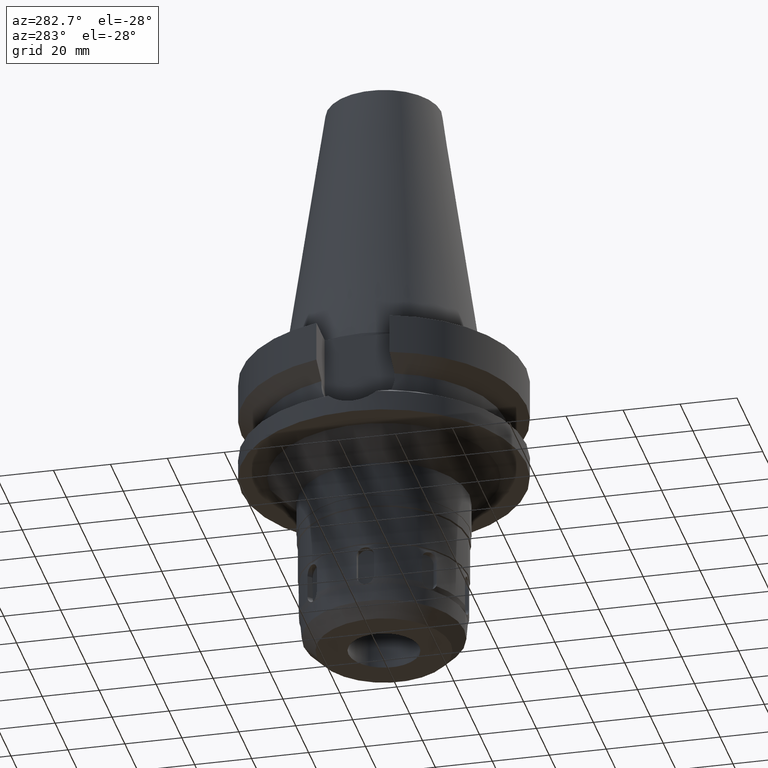
[diagram: clean part render]
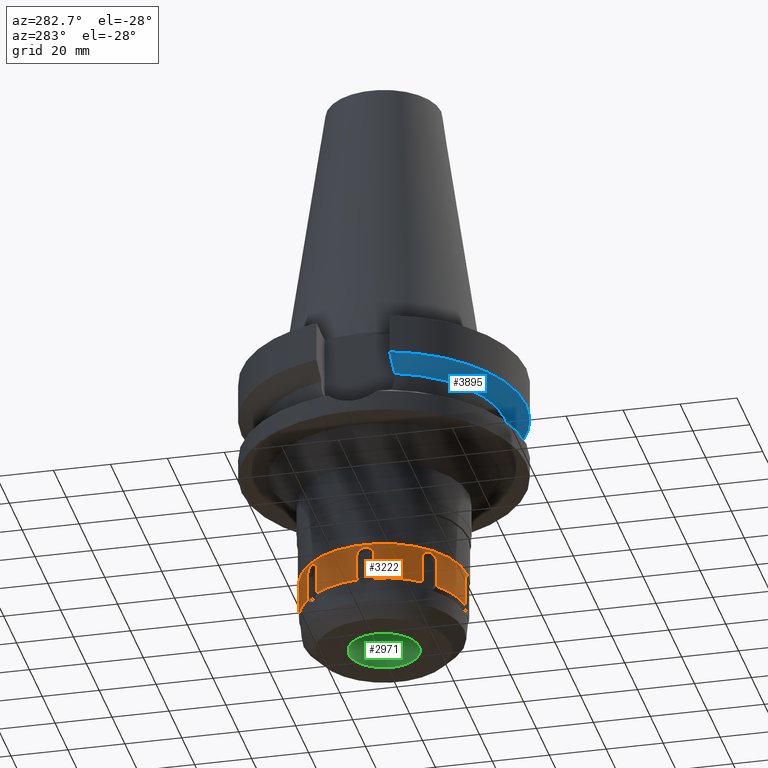
[diagram: same view with three faces highlighted in distinct colors, each labeled with its STEP entity id]
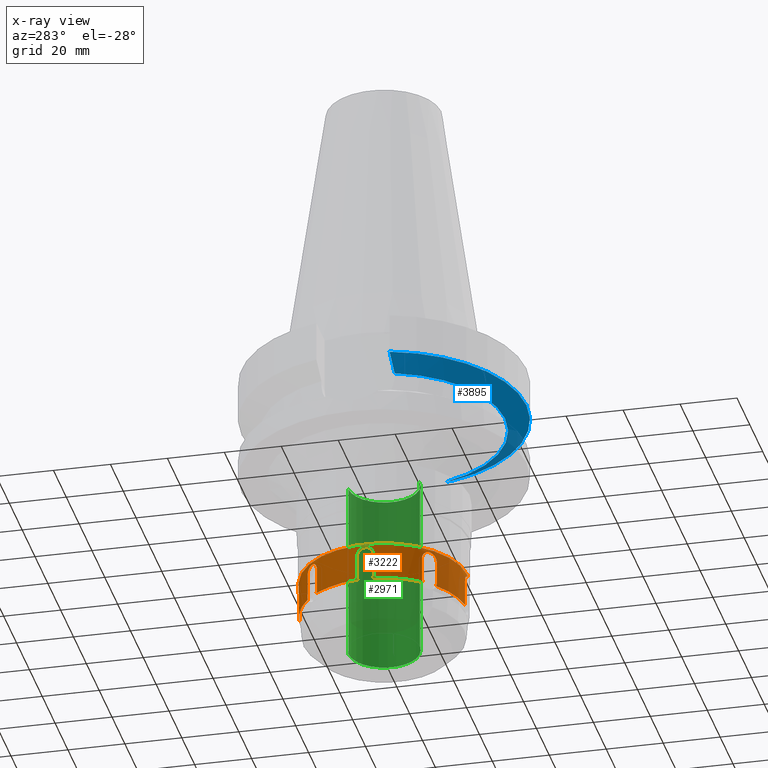
[diagram: x-ray of the same camera — body ghosted, the three highlighted faces saturated]
A machine part, auxiliary view with three faces highlighted in distinct colors.
The next image is the same camera in x-ray (body ghosted, the three faces saturated) — at least one of them is partly hidden behind the body in this view.
Their STEP definitions:

[orange] entity #3222 — the highlighted cylindrical surface (partial cylindrical patch) has radius 29.25 mm, axis along (0, 0, -1).
#420=CARTESIAN_POINT('',(-1.864707272729E1,2.253550994109E1,-9.229999787682E1));
#430=CARTESIAN_POINT('',(-2.253559193406E1,1.864704044223E1,-9.229981935275E1));
#435=CARTESIAN_POINT('',(0.E0,0.E0,-9.23E1));
#436=DIRECTION('',(0.E0,0.E0,1.E0));
#437=DIRECTION('',(-7.704446794501E-1,6.375068594981E-1,0.E0));
#438=AXIS2_PLACEMENT_3D('',#435,#436,#437);
#453=CARTESIAN_POINT('',(-2.912051862069E1,-2.749621125201E0,
-9.229981936115E1));
#458=CARTESIAN_POINT('',(0.E0,0.E0,-9.23E1));
#459=DIRECTION('',(0.E0,0.E0,1.E0));
#460=DIRECTION('',(-9.955720807723E-1,-9.400123396413E-2,0.E0));
#461=AXIS2_PLACEMENT_3D('',#458,#459,#460);
#476=CARTESIAN_POINT('',(-1.864704047073E1,-2.253559191477E1,
-9.229981933984E1));
#481=CARTESIAN_POINT('',(0.E0,0.E0,-9.23E1));
#482=DIRECTION('',(0.E0,0.E0,1.E0));
#483=DIRECTION('',(-6.375068626276E-1,-7.704446768605E-1,0.E0));
#484=AXIS2_PLACEMENT_3D('',#481,#482,#483);
#489=CARTESIAN_POINT('',(-2.749540322224E0,-2.912048347148E1,
-9.229999787879E1));
#521=CARTESIAN_POINT('',(-2.749621110597E0,2.912051862567E1,-9.229981930323E1));
#526=CARTESIAN_POINT('',(0.E0,0.E0,-9.23E1));
#527=DIRECTION('',(0.E0,0.E0,1.E0));
#528=DIRECTION('',(-9.400122987513E-2,9.955720811583E-1,0.E0));
#529=AXIS2_PLACEMENT_3D('',#526,#527,#528);
#548=CARTESIAN_POINT('',(-2.269512043008E1,1.845247974296E1,-8.31E1));
#549=CARTESIAN_POINT('',(-2.269512043008E1,1.845247974296E1,-8.277686249835E1));
#550=CARTESIAN_POINT('',(-2.263276877410E1,1.852959368052E1,-8.216461561098E1));
#551=CARTESIAN_POINT('',(-2.235528071129E1,1.886545203078E1,-8.130704401092E1));
#552=CARTESIAN_POINT('',(-2.191570001302E1,1.937701759908E1,-8.063385344965E1));
#553=CARTESIAN_POINT('',(-2.133824815278E1,2.001275190826E1,-8.019908429380E1));
#554=CARTESIAN_POINT('',(-2.091184329248E1,2.045390340693E1,-8.009999999999E1));
#555=CARTESIAN_POINT('',(-2.068287334971E1,2.068287334971E1,-8.009999999999E1));
#560=CARTESIAN_POINT('',(-2.068287334971E1,2.068287334971E1,-8.009999999999E1));
#561=CARTESIAN_POINT('',(-2.045440936243E1,2.091133733698E1,-8.009999999999E1));
#562=CARTESIAN_POINT('',(-2.001405955797E1,2.133700520696E1,-8.019865521250E1));
#563=CARTESIAN_POINT('',(-1.937889794520E1,2.191403631678E1,-8.063214411085E1));
#564=CARTESIAN_POINT('',(-1.886698611266E1,2.235399563119E1,-8.130427173625E1));
#565=CARTESIAN_POINT('',(-1.853009965121E1,2.263236025073E1,-8.216210426978E1));
#566=CARTESIAN_POINT('',(-1.845247974296E1,2.269512043008E1,-8.277582985035E1));
#567=CARTESIAN_POINT('',(-1.845247974296E1,2.269512043008E1,-8.31E1));
#572=DIRECTION('',(3.838016590007E-6,-3.601637254386E-6,-9.999999999861E-1));
#573=VECTOR('',#572,8.000000016386E0);
#574=CARTESIAN_POINT('',(-1.845247974296E1,2.269512043008E1,-8.31E1));
#575=LINE('',#574,#573);
#579=CARTESIAN_POINT('',(-1.845244903883E1,2.269509161698E1,-9.110000001628E1));
#580=CARTESIAN_POINT('',(-1.845244903883E1,2.269509161698E1,-9.123807142694E1));
#581=CARTESIAN_POINT('',(-1.846719185998E1,2.268319610300E1,-9.151111492143E1));
#582=CARTESIAN_POINT('',(-1.853296800807E1,2.262952186907E1,-9.191595562350E1));
#583=CARTESIAN_POINT('',(-1.860436700684E1,2.257084694463E1,-9.217355341343E1));
#584=CARTESIAN_POINT('',(-1.864707272729E1,2.253550994109E1,-9.229999787682E1));
#589=CARTESIAN_POINT('',(-2.749621110597E0,2.912051862567E1,-9.229981930323E1));
#590=CARTESIAN_POINT('',(-2.804780138253E0,2.911531054828E1,-9.217336609724E1));
#591=CARTESIAN_POINT('',(-2.896669144298E0,2.910626432373E1,-9.191604180122E1));
#592=CARTESIAN_POINT('',(-2.981164930642E0,2.909770481996E1,-9.151108905516E1));
#593=CARTESIAN_POINT('',(-3.000002519430E0,2.909574637033E1,-9.123807103397E1));
#594=CARTESIAN_POINT('',(-3.000002519430E0,2.909574637033E1,-9.110000000042E1));
#599=DIRECTION('',(3.149288267779E-7,9.269695721635E-8,9.999999999999E-1));
#600=VECTOR('',#599,8.000000000423E0);
#601=CARTESIAN_POINT('',(-3.000002519430E0,2.909574637033E1,-9.110000000042E1));
#602=LINE('',#601,#600);
#606=CARTESIAN_POINT('',(-3.E0,2.909574711191E1,-8.31E1));
#607=CARTESIAN_POINT('',(-3.E0,2.909574711191E1,-8.277673867811E1));
#608=CARTESIAN_POINT('',(-2.901287004117E0,2.910619547181E1,-8.216436267723E1));
#609=CARTESIAN_POINT('',(-2.467719441870E0,2.914745436773E1,-8.130719581929E1));
#610=CARTESIAN_POINT('',(-1.795620431110E0,2.919832554278E1,-8.063426783391E1));
#611=CARTESIAN_POINT('',(-9.380027675521E-1,2.923955039503E1,
-8.019929555104E1));
#612=CARTESIAN_POINT('',(-3.241304715920E-1,2.925E1,-8.01E1));
#613=CARTESIAN_POINT('',(4.761564060449E-14,2.925E1,-8.01E1));
#618=DIRECTION('',(-2.002495446076E-14,0.E0,-1.E0));
#619=VECTOR('',#618,1.05E0);
#620=CARTESIAN_POINT('',(0.E0,-2.925E1,-7.905E1));
#621=LINE('',#620,#619);
#625=CARTESIAN_POINT('',(-2.102620218380E-14,-2.925E1,-8.01E1));
#626=CARTESIAN_POINT('',(-3.231814346087E-1,-2.925E1,-8.01E1));
#627=CARTESIAN_POINT('',(-9.356669072409E-1,-2.923961247841E1,
-8.019871091899E1));
#628=CARTESIAN_POINT('',(-1.792798238983E0,-2.919850186723E1,
-8.063228057127E1));
#629=CARTESIAN_POINT('',(-2.465794881290E0,-2.914762611416E1,
-8.130443109547E1));
#630=CARTESIAN_POINT('',(-2.900756752542E0,-2.910625227456E1,
-8.216219978684E1));
#631=CARTESIAN_POINT('',(-3.E0,-2.909574711191E1,-8.277586671145E1));
#632=CARTESIAN_POINT('',(-3.E0,-2.909574711191E1,-8.31E1));
#637=DIRECTION('',(-1.672034263173E-7,5.260646539601E-6,-9.999999999861E-1));
#638=VECTOR('',#637,8.000000016386E0);
#639=CARTESIAN_POINT('',(-3.E0,-2.909574711191E1,-8.31E1));
#640=LINE('',#639,#638);
#644=CARTESIAN_POINT('',(-3.000001337627E0,-2.909570502674E1,
-9.110000001628E1));
#645=CARTESIAN_POINT('',(-3.000001337627E0,-2.909570502674E1,
-9.123807142708E1));
#646=CARTESIAN_POINT('',(-2.981165193357E0,-2.909771837673E1,
-9.151111492202E1));
#647=CARTESIAN_POINT('',(-2.896701018178E0,-2.910627572233E1,
-9.191595562358E1));
#648=CARTESIAN_POINT('',(-2.804724861660E0,-2.911527300177E1,
-9.217355341595E1));
#649=CARTESIAN_POINT('',(-2.749540322224E0,-2.912048347148E1,
-9.229999787879E1));
#654=CARTESIAN_POINT('',(-1.864704047073E1,-2.253559191477E1,
-9.229981933984E1));
#655=CARTESIAN_POINT('',(-1.860435447756E1,-2.257091257361E1,
-9.217336613626E1));
#656=CARTESIAN_POINT('',(-1.853298247852E1,-2.262949127737E1,
-9.191604178357E1));
#657=CARTESIAN_POINT('',(-1.846718245671E1,-2.268318633355E1,
-9.151108906048E1));
#658=CARTESIAN_POINT('',(-1.845247743689E1,-2.269512168732E1,
-9.123807103403E1));
#659=CARTESIAN_POINT('',(-1.845247743689E1,-2.269512168732E1,
-9.110000000042E1));
#664=DIRECTION('',(-2.882586125200E-7,1.571545591356E-7,9.999999999999E-1));
#665=VECTOR('',#664,8.000000000423E0);
#666=CARTESIAN_POINT('',(-1.845247743689E1,-2.269512168732E1,
-9.110000000042E1));
#667=LINE('',#666,#665);
#671=CARTESIAN_POINT('',(-1.845247974296E1,-2.269512043008E1,-8.31E1));
#672=CARTESIAN_POINT('',(-1.845247974296E1,-2.269512043008E1,
-8.277670568280E1));
#673=CARTESIAN_POINT('',(-1.852968273182E1,-2.263269647151E1,
-8.216427643078E1));
#674=CARTESIAN_POINT('',(-1.886549772794E1,-2.235524020580E1,
-8.130704628042E1));
#675=CARTESIAN_POINT('',(-1.937677310415E1,-2.191591119756E1,
-8.063413610739E1));
#676=CARTESIAN_POINT('',(-2.001235072592E1,-2.133862540430E1,
-8.019924576690E1));
#677=CARTESIAN_POINT('',(-2.045373291941E1,-2.091201378E1,-8.01E1));
#678=CARTESIAN_POINT('',(-2.068287334971E1,-2.068287334971E1,-8.01E1));
#683=CARTESIAN_POINT('',(-2.068287334971E1,-2.068287334971E1,-8.01E1));
#684=CARTESIAN_POINT('',(-2.091122214220E1,-2.045452455721E1,-8.01E1));
#685=CARTESIAN_POINT('',(-2.133675246227E1,-2.001432831746E1,
-8.019854767222E1));
#686=CARTESIAN_POINT('',(-2.191390009373E1,-1.937905612359E1,
-8.063195595526E1));
#687=CARTESIAN_POINT('',(-2.235404977677E1,-1.886692362290E1,
-8.130431878306E1));
#688=CARTESIAN_POINT('',(-2.263242155268E1,-1.853002404951E1,
-8.216240300056E1));
#689=CARTESIAN_POINT('',(-2.269512043008E1,-1.845247974296E1,
-8.277596592635E1));
#690=CARTESIAN_POINT('',(-2.269512043008E1,-1.845247974296E1,-8.31E1));
#695=DIRECTION('',(3.602768515692E-6,3.835941606272E-6,-9.999999999862E-1));
#696=VECTOR('',#695,8.000000016384E0);
#697=CARTESIAN_POINT('',(-2.269512043008E1,-1.845247974296E1,-8.31E1));
#698=LINE('',#697,#696);
#702=CARTESIAN_POINT('',(-2.269509160793E1,-1.845244905543E1,
-9.110000001627E1));
#703=CARTESIAN_POINT('',(-2.269509160793E1,-1.845244905543E1,
-9.123807142695E1));
#704=CARTESIAN_POINT('',(-2.268319605354E1,-1.846719191735E1,
-9.151111492488E1));
#705=CARTESIAN_POINT('',(-2.262952191277E1,-1.853296795785E1,
-9.191595564093E1));
#706=CARTESIAN_POINT('',(-2.257084695826E1,-1.860436698494E1,
-9.217355344915E1));
#707=CARTESIAN_POINT('',(-2.253550995965E1,-1.864707269979E1,
-9.229999789038E1));
#712=CARTESIAN_POINT('',(-2.912051862069E1,-2.749621125201E0,
-9.229981936115E1));
#713=CARTESIAN_POINT('',(-2.911531054324E1,-2.804780151197E0,
-9.217336618076E1));
#714=CARTESIAN_POINT('',(-2.910626431848E1,-2.896669219200E0,
-9.191604179756E1));
#715=CARTESIAN_POINT('',(-2.909770482590E1,-2.981164850645E0,
-9.151108906494E1));
#716=CARTESIAN_POINT('',(-2.909574637586E1,-3.000002500642E0,
-9.123807103398E1));
#717=CARTESIAN_POINT('',(-2.909574637586E1,-3.000002500642E0,
-9.110000000042E1));
#722=DIRECTION('',(-9.200567418561E-8,3.125802650442E-7,9.999999999999E-1));
#723=VECTOR('',#722,8.000000000419E0);
#724=CARTESIAN_POINT('',(-2.909574637586E1,-3.000002500642E0,
-9.110000000042E1));
#725=LINE('',#724,#723);
#729=CARTESIAN_POINT('',(-2.909574711191E1,-3.E0,-8.31E1));
#730=CARTESIAN_POINT('',(-2.909574711191E1,-3.E0,-8.277675681954E1));
#731=CARTESIAN_POINT('',(-2.910619793384E1,-2.901246138700E0,
-8.216438812277E1));
#732=CARTESIAN_POINT('',(-2.914743039956E1,-2.468019065309E0,
-8.130756246214E1));
#733=CARTESIAN_POINT('',(-2.919834158144E1,-1.795391666858E0,
-8.063405223817E1));
#734=CARTESIAN_POINT('',(-2.923954903718E1,-9.379757678507E-1,
-8.019932413249E1));
#735=CARTESIAN_POINT('',(-2.925E1,-3.241088013310E-1,-8.01E1));
#736=CARTESIAN_POINT('',(-2.925E1,0.E0,-8.01E1));
#741=CARTESIAN_POINT('',(-2.925E1,0.E0,-8.01E1));
#742=CARTESIAN_POINT('',(-2.925E1,3.228459180964E-1,-8.01E1));
#743=CARTESIAN_POINT('',(-2.923963336710E1,9.349094169554E-1,
-8.019852531682E1));
#744=CARTESIAN_POINT('',(-2.919855070527E1,1.792098782400E0,-8.063168101012E1));
#745=CARTESIAN_POINT('',(-2.914761236118E1,2.465994585859E0,-8.130457905357E1));
#746=CARTESIAN_POINT('',(-2.910624773797E1,2.900786073864E0,-8.216238109953E1));
#747=CARTESIAN_POINT('',(-2.909574711191E1,3.E0,-8.277596552697E1));
#748=CARTESIAN_POINT('',(-2.909574711191E1,3.E0,-8.31E1));
#753=DIRECTION('',(5.259962145285E-6,1.648782489381E-7,-9.999999999862E-1));
#754=VECTOR('',#753,8.000000016384E0);
#755=CARTESIAN_POINT('',(-2.909574711191E1,3.E0,-8.31E1));
#756=LINE('',#755,#754);
#760=CARTESIAN_POINT('',(-2.909570503221E1,3.000001319026E0,-9.110000001627E1));
#761=CARTESIAN_POINT('',(-2.909570503221E1,3.000001319026E0,-9.123807142695E1));
#762=CARTESIAN_POINT('',(-2.909771838268E1,2.981165114210E0,-9.151111492488E1));
#763=CARTESIAN_POINT('',(-2.910627571804E1,2.896701081023E0,-9.191595564091E1));
#764=CARTESIAN_POINT('',(-2.911527299605E1,2.804724886562E0,-9.217355344919E1));
#765=CARTESIAN_POINT('',(-2.912048346526E1,2.749540354648E0,-9.229999789042E1));
#770=CARTESIAN_POINT('',(-2.253559193406E1,1.864704044223E1,-9.229981935275E1));
#771=CARTESIAN_POINT('',(-2.257091258776E1,1.860435445492E1,-9.217336617186E1));
#772=CARTESIAN_POINT('',(-2.262949132159E1,1.853298242775E1,-9.191604180171E1));
#773=CARTESIAN_POINT('',(-2.268318628130E1,1.846718251738E1,-9.151108906375E1));
#774=CARTESIAN_POINT('',(-2.269512167784E1,1.845247745428E1,-9.123807103398E1));
#775=CARTESIAN_POINT('',(-2.269512167784E1,1.845247745428E1,-9.110000000042E1));
#780=DIRECTION('',(1.559698081717E-7,2.860854970549E-7,9.999999999999E-1));
#781=VECTOR('',#780,8.000000000419E0);
#782=CARTESIAN_POINT('',(-2.269512167784E1,1.845247745428E1,-9.110000000042E1));
#783=LINE('',#782,#781);
#873=DIRECTION('',(2.679164430697E-14,0.E0,-1.E0));
#874=VECTOR('',#873,1.05E0);
#875=CARTESIAN_POINT('',(1.948441408217E-14,2.925E1,-7.905E1));
#876=LINE('',#875,#874);
#1198=CARTESIAN_POINT('',(0.E0,0.E0,-7.905E1));
#1199=DIRECTION('',(0.E0,0.E0,-1.E0));
#1200=DIRECTION('',(0.E0,-1.E0,0.E0));
#1201=AXIS2_PLACEMENT_3D('',#1198,#1199,#1200);
#2494=VERTEX_POINT('',#489);
#2495=VERTEX_POINT('',#644);
#2504=VERTEX_POINT('',#420);
#2505=VERTEX_POINT('',#430);
#2506=CARTESIAN_POINT('',(-2.912048417701E1,2.749527467912E0,-9.23E1));
#2507=VERTEX_POINT('',#2506);
#2508=VERTEX_POINT('',#453);
#2509=CARTESIAN_POINT('',(-2.253550135062E1,-1.864708231537E1,-9.23E1));
#2510=VERTEX_POINT('',#2509);
#2511=VERTEX_POINT('',#476);
#2512=VERTEX_POINT('',#521);
#2513=VERTEX_POINT('',#579);
#2520=CARTESIAN_POINT('',(-2.269512167784E1,1.845247745428E1,
-9.110000000042E1));
#2521=VERTEX_POINT('',#2520);
#2522=VERTEX_POINT('',#560);
#2523=VERTEX_POINT('',#567);
#2524=VERTEX_POINT('',#548);
#2525=VERTEX_POINT('',#594);
#2526=CARTESIAN_POINT('',(-3.E0,2.909574711191E1,-8.31E1));
#2527=VERTEX_POINT('',#2526);
#2528=VERTEX_POINT('',#613);
#2529=CARTESIAN_POINT('',(1.948441408217E-14,2.925E1,-7.905E1));
#2530=VERTEX_POINT('',#2529);
#2531=CARTESIAN_POINT('',(0.E0,-2.925E1,-7.905E1));
#2532=VERTEX_POINT('',#2531);
#2533=CARTESIAN_POINT('',(-2.102620218380E-14,-2.925E1,-8.01E1));
#2534=VERTEX_POINT('',#2533);
#2535=VERTEX_POINT('',#632);
#2536=VERTEX_POINT('',#659);
#2537=CARTESIAN_POINT('',(-1.845247974296E1,-2.269512043008E1,-8.31E1));
#2538=VERTEX_POINT('',#2537);
#2539=VERTEX_POINT('',#683);
#2540=VERTEX_POINT('',#690);
#2541=CARTESIAN_POINT('',(-2.269509160793E1,-1.845244905543E1,
-9.110000001627E1));
#2542=VERTEX_POINT('',#2541);
#2543=VERTEX_POINT('',#717);
#2544=CARTESIAN_POINT('',(-2.909574711191E1,-3.E0,-8.31E1));
#2545=VERTEX_POINT('',#2544);
#2546=VERTEX_POINT('',#741);
#2547=VERTEX_POINT('',#748);
#2548=CARTESIAN_POINT('',(-2.909570503221E1,3.000001319026E0,
-9.110000001627E1));
#2549=VERTEX_POINT('',#2548);
#3160=CARTESIAN_POINT('',(0.E0,2.597965719711E-14,1.1214E2));
#3161=DIRECTION('',(0.E0,0.E0,-1.E0));
#3162=DIRECTION('',(0.E0,-1.E0,0.E0));
#3163=AXIS2_PLACEMENT_3D('',#3160,#3161,#3162);
#3164=CYLINDRICAL_SURFACE('',#3163,2.925E1);
#3166=ORIENTED_EDGE('',*,*,#3165,.T.);
#3168=ORIENTED_EDGE('',*,*,#3167,.T.);
#3170=ORIENTED_EDGE('',*,*,#3169,.T.);
#3171=ORIENTED_EDGE('',*,*,#3145,.T.);
#3172=ORIENTED_EDGE('',*,*,#3134,.F.);
#3174=ORIENTED_EDGE('',*,*,#3173,.T.);
#3176=ORIENTED_EDGE('',*,*,#3175,.T.);
#3178=ORIENTED_EDGE('',*,*,#3177,.T.);
#3180=ORIENTED_EDGE('',*,*,#3179,.F.);
#3182=ORIENTED_EDGE('',*,*,#3181,.F.);
#3184=ORIENTED_EDGE('',*,*,#3183,.T.);
#3186=ORIENTED_EDGE('',*,*,#3185,.T.);
#3188=ORIENTED_EDGE('',*,*,#3187,.T.);
#3189=ORIENTED_EDGE('',*,*,#3096,.T.);
#3190=ORIENTED_EDGE('',*,*,#3126,.F.);
#3192=ORIENTED_EDGE('',*,*,#3191,.T.);
#3194=ORIENTED_EDGE('',*,*,#3193,.T.);
#3196=ORIENTED_EDGE('',*,*,#3195,.T.);
#3198=ORIENTED_EDGE('',*,*,#3197,.T.);
#3200=ORIENTED_EDGE('',*,*,#3199,.T.);
#3202=ORIENTED_EDGE('',*,*,#3201,.T.);
#3203=ORIENTED_EDGE('',*,*,#3122,.F.);
#3205=ORIENTED_EDGE('',*,*,#3204,.T.);
#3207=ORIENTED_EDGE('',*,*,#3206,.T.);
#3209=ORIENTED_EDGE('',*,*,#3208,.T.);
#3211=ORIENTED_EDGE('',*,*,#3210,.T.);
#3213=ORIENTED_EDGE('',*,*,#3212,.T.);
#3215=ORIENTED_EDGE('',*,*,#3214,.T.);
#3216=ORIENTED_EDGE('',*,*,#3118,.F.);
#3217=ORIENTED_EDGE('',*,*,#3155,.T.);
#3219=ORIENTED_EDGE('',*,*,#3218,.T.);
#3220=EDGE_LOOP('',(#3166,#3168,#3170,#3171,#3172,#3174,#3176,#3178,#3180,#3182,
#3184,#3186,#3188,#3189,#3190,#3192,#3194,#3196,#3198,#3200,#3202,#3203,#3205,
#3207,#3209,#3211,#3213,#3215,#3216,#3217,#3219));
#3221=FACE_OUTER_BOUND('',#3220,.F.);
#439=CIRCLE('',#438,2.925E1);
#462=CIRCLE('',#461,2.925E1);
#485=CIRCLE('',#484,2.925E1);
#530=CIRCLE('',#529,2.925E1);
#556=B_SPLINE_CURVE_WITH_KNOTS('',3,(#548,#549,#550,#551,#552,#553,#554,#555),
.UNSPECIFIED.,.F.,.F.,(4,1,1,1,1,4),(0.E0,2.E-1,4.E-1,6.E-1,8.E-1,1.E0),
.UNSPECIFIED.);
#568=B_SPLINE_CURVE_WITH_KNOTS('',3,(#560,#561,#562,#563,#564,#565,#566,#567),
.UNSPECIFIED.,.F.,.F.,(4,1,1,1,1,4),(0.E0,2.E-1,4.E-1,6.E-1,8.E-1,1.E0),
.UNSPECIFIED.);
#585=B_SPLINE_CURVE_WITH_KNOTS('',3,(#579,#580,#581,#582,#583,#584),
.UNSPECIFIED.,.F.,.F.,(4,1,1,4),(0.E0,3.333333333333E-1,6.666666666667E-1,1.E0),
.UNSPECIFIED.);
#595=B_SPLINE_CURVE_WITH_KNOTS('',3,(#589,#590,#591,#592,#593,#594),
.UNSPECIFIED.,.F.,.F.,(4,1,1,4),(0.E0,3.333333333333E-1,6.666666666667E-1,1.E0),
.UNSPECIFIED.);
#614=B_SPLINE_CURVE_WITH_KNOTS('',3,(#606,#607,#608,#609,#610,#611,#612,#613),
.UNSPECIFIED.,.F.,.F.,(4,1,1,1,1,4),(0.E0,2.E-1,4.E-1,6.E-1,8.E-1,1.E0),
.UNSPECIFIED.);
#633=B_SPLINE_CURVE_WITH_KNOTS('',3,(#625,#626,#627,#628,#629,#630,#631,#632),
.UNSPECIFIED.,.F.,.F.,(4,1,1,1,1,4),(0.E0,2.E-1,4.E-1,6.E-1,8.E-1,1.E0),
.UNSPECIFIED.);
#650=B_SPLINE_CURVE_WITH_KNOTS('',3,(#644,#645,#646,#647,#648,#649),
.UNSPECIFIED.,.F.,.F.,(4,1,1,4),(0.E0,3.333333333333E-1,6.666666666667E-1,1.E0),
.UNSPECIFIED.);
#660=B_SPLINE_CURVE_WITH_KNOTS('',3,(#654,#655,#656,#657,#658,#659),
.UNSPECIFIED.,.F.,.F.,(4,1,1,4),(0.E0,3.333333333333E-1,6.666666666667E-1,1.E0),
.UNSPECIFIED.);
#679=B_SPLINE_CURVE_WITH_KNOTS('',3,(#671,#672,#673,#674,#675,#676,#677,#678),
.UNSPECIFIED.,.F.,.F.,(4,1,1,1,1,4),(0.E0,2.E-1,4.E-1,6.E-1,8.E-1,1.E0),
.UNSPECIFIED.);
#691=B_SPLINE_CURVE_WITH_KNOTS('',3,(#683,#684,#685,#686,#687,#688,#689,#690),
.UNSPECIFIED.,.F.,.F.,(4,1,1,1,1,4),(0.E0,2.E-1,4.E-1,6.E-1,8.E-1,1.E0),
.UNSPECIFIED.);
#708=B_SPLINE_CURVE_WITH_KNOTS('',3,(#702,#703,#704,#705,#706,#707),
.UNSPECIFIED.,.F.,.F.,(4,1,1,4),(0.E0,3.333333333333E-1,6.666666666667E-1,1.E0),
.UNSPECIFIED.);
#718=B_SPLINE_CURVE_WITH_KNOTS('',3,(#712,#713,#714,#715,#716,#717),
.UNSPECIFIED.,.F.,.F.,(4,1,1,4),(0.E0,3.333333333333E-1,6.666666666667E-1,1.E0),
.UNSPECIFIED.);
#737=B_SPLINE_CURVE_WITH_KNOTS('',3,(#729,#730,#731,#732,#733,#734,#735,#736),
.UNSPECIFIED.,.F.,.F.,(4,1,1,1,1,4),(0.E0,2.E-1,4.E-1,6.E-1,8.E-1,1.E0),
.UNSPECIFIED.);
#749=B_SPLINE_CURVE_WITH_KNOTS('',3,(#741,#742,#743,#744,#745,#746,#747,#748),
.UNSPECIFIED.,.F.,.F.,(4,1,1,1,1,4),(0.E0,2.E-1,4.E-1,6.E-1,8.E-1,1.E0),
.UNSPECIFIED.);
#766=B_SPLINE_CURVE_WITH_KNOTS('',3,(#760,#761,#762,#763,#764,#765),
.UNSPECIFIED.,.F.,.F.,(4,1,1,4),(0.E0,3.333333333333E-1,6.666666666667E-1,1.E0),
.UNSPECIFIED.);
#776=B_SPLINE_CURVE_WITH_KNOTS('',3,(#770,#771,#772,#773,#774,#775),
.UNSPECIFIED.,.F.,.F.,(4,1,1,4),(0.E0,3.333333333333E-1,6.666666666667E-1,1.E0),
.UNSPECIFIED.);
#1202=CIRCLE('',#1201,2.925E1);
#3096=EDGE_CURVE('',#2495,#2494,#650,.T.);
#3118=EDGE_CURVE('',#2505,#2507,#439,.T.);
#3122=EDGE_CURVE('',#2508,#2510,#462,.T.);
#3126=EDGE_CURVE('',#2511,#2494,#485,.T.);
#3134=EDGE_CURVE('',#2512,#2504,#530,.T.);
#3145=EDGE_CURVE('',#2513,#2504,#585,.T.);
#3155=EDGE_CURVE('',#2505,#2521,#776,.T.);
#3165=EDGE_CURVE('',#2524,#2522,#556,.T.);
#3167=EDGE_CURVE('',#2522,#2523,#568,.T.);
#3169=EDGE_CURVE('',#2523,#2513,#575,.T.);
#3173=EDGE_CURVE('',#2512,#2525,#595,.T.);
#3175=EDGE_CURVE('',#2525,#2527,#602,.T.);
#3177=EDGE_CURVE('',#2527,#2528,#614,.T.);
#3179=EDGE_CURVE('',#2530,#2528,#876,.T.);
#3181=EDGE_CURVE('',#2532,#2530,#1202,.T.);
#3183=EDGE_CURVE('',#2532,#2534,#621,.T.);
#3185=EDGE_CURVE('',#2534,#2535,#633,.T.);
#3187=EDGE_CURVE('',#2535,#2495,#640,.T.);
#3191=EDGE_CURVE('',#2511,#2536,#660,.T.);
#3193=EDGE_CURVE('',#2536,#2538,#667,.T.);
#3195=EDGE_CURVE('',#2538,#2539,#679,.T.);
#3197=EDGE_CURVE('',#2539,#2540,#691,.T.);
#3199=EDGE_CURVE('',#2540,#2542,#698,.T.);
#3201=EDGE_CURVE('',#2542,#2510,#708,.T.);
#3204=EDGE_CURVE('',#2508,#2543,#718,.T.);
#3206=EDGE_CURVE('',#2543,#2545,#725,.T.);
#3208=EDGE_CURVE('',#2545,#2546,#737,.T.);
#3210=EDGE_CURVE('',#2546,#2547,#749,.T.);
#3212=EDGE_CURVE('',#2547,#2549,#756,.T.);
#3214=EDGE_CURVE('',#2549,#2507,#766,.T.);
#3218=EDGE_CURVE('',#2521,#2524,#783,.T.);
#3222=ADVANCED_FACE('',(#3221),#3164,.T.);

[blue] entity #3895 — the highlighted conical surface has half-angle 60 deg.
#1766=CARTESIAN_POINT('',(-4.832056912902E1,-1.285000385397E1,
-1.566265771218E1));
#1767=CARTESIAN_POINT('',(-4.745408731291E1,-1.285000385397E1,
-1.614611804181E1));
#1768=CARTESIAN_POINT('',(-4.572064983821E1,-1.284999774058E1,
-1.711204772786E1));
#1769=CARTESIAN_POINT('',(-4.311729574998E1,-1.285000212701E1,
-1.855526389221E1));
#1770=CARTESIAN_POINT('',(-4.138011683097E1,-1.284999654326E1,
-1.951445450772E1));
#1771=CARTESIAN_POINT('',(-4.051083298129E1,-1.284999654326E1,
-1.999284578272E1));
#1810=CARTESIAN_POINT('',(0.E0,1.006319759054E-14,-1.566269223573E1));
#1811=DIRECTION('',(0.E0,0.E0,1.E0));
#1812=DIRECTION('',(-9.664114030784E-1,-2.57E-1,0.E0));
#1813=AXIS2_PLACEMENT_3D('',#1810,#1811,#1812);
#1818=CARTESIAN_POINT('',(0.E0,1.006319759054E-14,-1.566269223573E1));
#1819=DIRECTION('',(0.E0,0.E0,1.E0));
#1820=DIRECTION('',(0.E0,-1.E0,0.E0));
#1821=AXIS2_PLACEMENT_3D('',#1818,#1819,#1820);
#1826=CARTESIAN_POINT('',(0.E0,1.006319759054E-14,-1.999281925465E1));
#1827=DIRECTION('',(0.E0,0.E0,-1.E0));
#1828=DIRECTION('',(9.531960443487E-1,-3.023529411765E-1,0.E0));
#1829=AXIS2_PLACEMENT_3D('',#1826,#1827,#1828);
#1834=CARTESIAN_POINT('',(0.E0,1.006319759054E-14,-1.999281925465E1));
#1835=DIRECTION('',(0.E0,0.E0,-1.E0));
#1836=DIRECTION('',(0.E0,-1.E0,0.E0));
#1837=AXIS2_PLACEMENT_3D('',#1834,#1835,#1836);
#1856=CARTESIAN_POINT('',(4.051083298413E1,-1.284999653432E1,
-1.999284585131E1));
#1857=CARTESIAN_POINT('',(4.138011687704E1,-1.284999653432E1,
-1.951445455241E1));
#1858=CARTESIAN_POINT('',(4.311729560824E1,-1.285000213109E1,
-1.855526365368E1));
#1859=CARTESIAN_POINT('',(4.572064965730E1,-1.284999773970E1,
-1.711204739920E1));
#1860=CARTESIAN_POINT('',(4.745408731717E1,-1.285000385330E1,
-1.614611804558E1));
#1861=CARTESIAN_POINT('',(4.832056912920E1,-1.285000385330E1,
-1.566265771822E1));
#2659=CARTESIAN_POINT('',(-4.051083298129E1,-1.284999654326E1,
-1.999284578272E1));
#2660=VERTEX_POINT('',#2659);
#2661=CARTESIAN_POINT('',(4.051083188482E1,-1.285E1,-1.999281925465E1));
#2662=CARTESIAN_POINT('',(0.E0,-4.25E1,-1.999281925465E1));
#2663=VERTEX_POINT('',#2661);
#2664=VERTEX_POINT('',#2662);
#2675=CARTESIAN_POINT('',(-4.832056912902E1,-1.285000385397E1,
-1.566265771218E1));
#2676=VERTEX_POINT('',#2675);
#2706=CARTESIAN_POINT('',(0.E0,-5.E1,-1.566269223573E1));
#2707=CARTESIAN_POINT('',(4.832057015392E1,-1.285E1,-1.566269223573E1));
#2708=VERTEX_POINT('',#2706);
#2709=VERTEX_POINT('',#2707);
#3879=CARTESIAN_POINT('',(0.E0,1.006319759054E-14,-1.782775574519E1));
#3880=DIRECTION('',(0.E0,0.E0,1.E0));
#3881=DIRECTION('',(0.E0,1.E0,0.E0));
#3882=AXIS2_PLACEMENT_3D('',#3879,#3880,#3881);
#3883=CONICAL_SURFACE('',#3882,4.625E1,6.E1);
#3884=ORIENTED_EDGE('',*,*,#3855,.F.);
#3886=ORIENTED_EDGE('',*,*,#3885,.T.);
#3888=ORIENTED_EDGE('',*,*,#3887,.T.);
#3890=ORIENTED_EDGE('',*,*,#3889,.F.);
#3891=ORIENTED_EDGE('',*,*,#3869,.T.);
#3892=ORIENTED_EDGE('',*,*,#3867,.T.);
#3893=EDGE_LOOP('',(#3884,#3886,#3888,#3890,#3891,#3892));
#3894=FACE_OUTER_BOUND('',#3893,.F.);
#1772=B_SPLINE_CURVE_WITH_KNOTS('',3,(#1766,#1767,#1768,#1769,#1770,#1771),
.UNSPECIFIED.,.F.,.F.,(4,1,1,4),(0.E0,3.333333333333E-1,6.666666666667E-1,1.E0),
.UNSPECIFIED.);
#1814=CIRCLE('',#1813,5.E1);
#1822=CIRCLE('',#1821,5.E1);
#1830=CIRCLE('',#1829,4.25E1);
#1838=CIRCLE('',#1837,4.25E1);
#1862=B_SPLINE_CURVE_WITH_KNOTS('',3,(#1856,#1857,#1858,#1859,#1860,#1861),
.UNSPECIFIED.,.F.,.F.,(4,1,1,4),(0.E0,3.333333333333E-1,6.666666666667E-1,1.E0),
.UNSPECIFIED.);
#3855=EDGE_CURVE('',#2676,#2660,#1772,.T.);
#3867=EDGE_CURVE('',#2664,#2660,#1838,.T.);
#3869=EDGE_CURVE('',#2663,#2664,#1830,.T.);
#3885=EDGE_CURVE('',#2676,#2708,#1814,.T.);
#3887=EDGE_CURVE('',#2708,#2709,#1822,.T.);
#3889=EDGE_CURVE('',#2663,#2709,#1862,.T.);
#3895=ADVANCED_FACE('',(#3894),#3883,.T.);

[green] entity #2971 — the highlighted cylindrical surface (edge-blend (fillet) strip) has radius 12.5 mm, axis along (0, 0, -1).
#186=CARTESIAN_POINT('',(0.E0,2.597965719711E-14,-4.1E1));
#187=DIRECTION('',(0.E0,0.E0,1.E0));
#188=DIRECTION('',(0.E0,-1.E0,0.E0));
#189=AXIS2_PLACEMENT_3D('',#186,#187,#188);
#202=DIRECTION('',(0.E0,0.E0,1.E0));
#203=VECTOR('',#202,6.4E1);
#204=CARTESIAN_POINT('',(0.E0,1.25E1,-1.05E2));
#205=LINE('',#204,#203);
#209=DIRECTION('',(0.E0,0.E0,1.E0));
#210=VECTOR('',#209,6.4E1);
#211=CARTESIAN_POINT('',(0.E0,-1.25E1,-1.05E2));
#212=LINE('',#211,#210);
#240=CARTESIAN_POINT('',(0.E0,2.597965719711E-14,-1.05E2));
#241=DIRECTION('',(0.E0,0.E0,-1.E0));
#242=DIRECTION('',(0.E0,1.E0,0.E0));
#243=AXIS2_PLACEMENT_3D('',#240,#241,#242);
#2460=CARTESIAN_POINT('',(0.E0,-1.25E1,-4.1E1));
#2461=CARTESIAN_POINT('',(0.E0,1.25E1,-4.1E1));
#2462=VERTEX_POINT('',#2460);
#2463=VERTEX_POINT('',#2461);
#2464=CARTESIAN_POINT('',(0.E0,1.25E1,-1.05E2));
#2465=VERTEX_POINT('',#2464);
#2466=CARTESIAN_POINT('',(0.E0,-1.25E1,-1.05E2));
#2467=VERTEX_POINT('',#2466);
#2957=CARTESIAN_POINT('',(0.E0,2.597965719711E-14,1.1214E2));
#2958=DIRECTION('',(0.E0,0.E0,-1.E0));
#2959=DIRECTION('',(0.E0,-1.E0,0.E0));
#2960=AXIS2_PLACEMENT_3D('',#2957,#2958,#2959);
#2961=CYLINDRICAL_SURFACE('',#2960,1.25E1);
#2963=ORIENTED_EDGE('',*,*,#2962,.T.);
#2964=ORIENTED_EDGE('',*,*,#2950,.F.);
#2966=ORIENTED_EDGE('',*,*,#2965,.F.);
#2968=ORIENTED_EDGE('',*,*,#2967,.F.);
#2969=EDGE_LOOP('',(#2963,#2964,#2966,#2968));
#2970=FACE_OUTER_BOUND('',#2969,.F.);
#190=CIRCLE('',#189,1.25E1);
#244=CIRCLE('',#243,1.25E1);
#2950=EDGE_CURVE('',#2462,#2463,#190,.T.);
#2962=EDGE_CURVE('',#2465,#2463,#205,.T.);
#2965=EDGE_CURVE('',#2467,#2462,#212,.T.);
#2967=EDGE_CURVE('',#2465,#2467,#244,.T.);
#2971=ADVANCED_FACE('',(#2970),#2961,.F.);